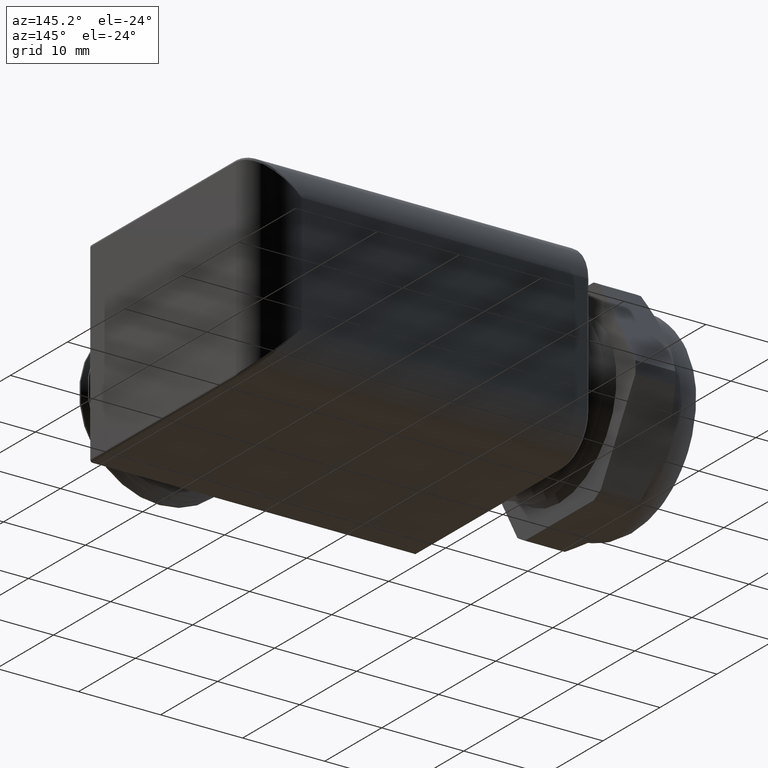
[diagram: clean part render]
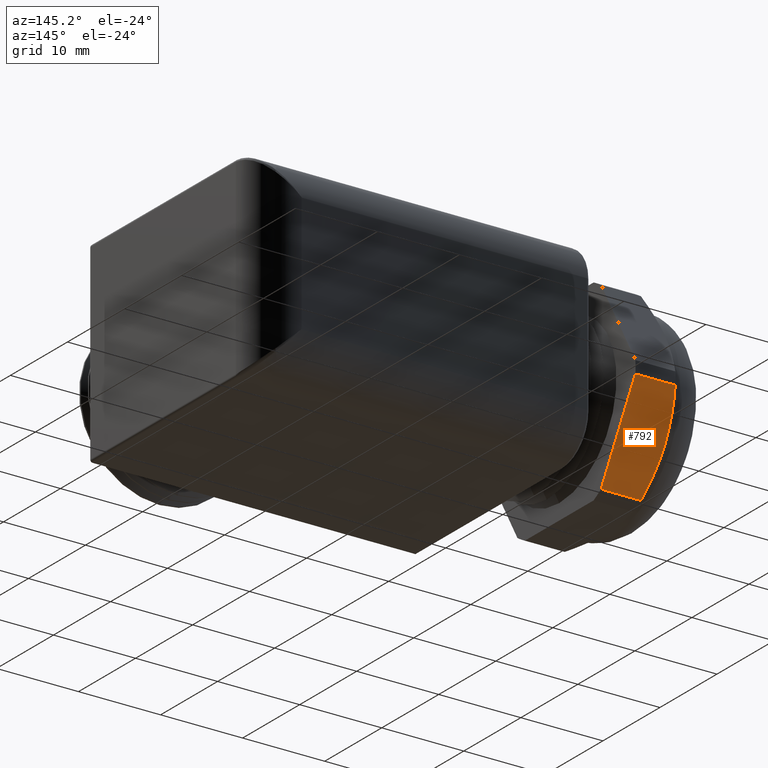
[diagram: same view with one face highlighted and labeled with its STEP entity id]
A machine part, auxiliary view. The second image highlights one B-rep face of the part: STEP entity #792.
In plain terms, the highlighted planar face has unit normal (0, -0.866, 0.5).
Its self-contained STEP definition (entity closure, byte-faithful):
#526 = VERTEX_POINT ( 'NONE', #2274 ) ;
#568 = VERTEX_POINT ( 'NONE', #2334 ) ;
#572 = EDGE_CURVE ( 'NONE', #573, #575, #2326, .T. ) ;
#573 = VERTEX_POINT ( 'NONE', #2191 ) ;
#575 = VERTEX_POINT ( 'NONE', #2185 ) ;
#751 = VERTEX_POINT ( 'NONE', #2668 ) ;
#753 = EDGE_CURVE ( 'NONE', #751, #568, #2653, .T. ) ;
#788 = ORIENTED_EDGE ( 'NONE', *, *, #960, .F. ) ;
#792 = ADVANCED_FACE ( 'NONE', ( #2773 ), #2772, .F. ) ;
#960 = EDGE_CURVE ( 'NONE', #526, #575, #3203, .T. ) ;
#965 = ORIENTED_EDGE ( 'NONE', *, *, #572, .T. ) ;
#975 = ORIENTED_EDGE ( 'NONE', *, *, #979, .F. ) ;
#979 = EDGE_CURVE ( 'NONE', #568, #526, #3139, .T. ) ;
#982 = EDGE_LOOP ( 'NONE', ( #975, #987, #990, #965, #788 ) ) ;
#985 = EDGE_CURVE ( 'NONE', #751, #573, #3122, .T. ) ;
#987 = ORIENTED_EDGE ( 'NONE', *, *, #753, .F. ) ;
#990 = ORIENTED_EDGE ( 'NONE', *, *, #985, .T. ) ;
#2185 = CARTESIAN_POINT ( 'NONE',  ( -0.4625953395545473500, 0.2885024497772521500, -0.4402990988777107400 ) ) ;
#2191 = CARTESIAN_POINT ( 'NONE',  ( -0.2711578947368420400, 0.2885024497772519200, -0.4402990988777108500 ) ) ;
#2274 = CARTESIAN_POINT ( 'NONE',  ( -0.4951578947368421300, 0.4070319397786859600, -0.2349999999999999900 ) ) ;
#2323 = DIRECTION ( 'NONE',  ( -1.000000000000000000, 0.0000000000000000000, 0.0000000000000000000 ) ) ;
#2324 = VECTOR ( 'NONE', #2323, 39.37007874015748100 ) ;
#2325 = CARTESIAN_POINT ( 'NONE',  ( 1.232614984114216400, 0.2885024497772521500, -0.4402990988777107400 ) ) ;
#2326 = LINE ( 'NONE', #2325, #2324 ) ;
#2334 = CARTESIAN_POINT ( 'NONE',  ( -0.4625953395545474600, 0.5255614297801199900, -0.02970090112228926400 ) ) ;
#2650 = DIRECTION ( 'NONE',  ( -1.000000000000000000, 0.0000000000000000000, 0.0000000000000000000 ) ) ;
#2651 = VECTOR ( 'NONE', #2650, 39.37007874015748100 ) ;
#2652 = CARTESIAN_POINT ( 'NONE',  ( 1.232614984114216400, 0.5255614297801199900, -0.02970090112228927100 ) ) ;
#2653 = LINE ( 'NONE', #2652, #2651 ) ;
#2668 = CARTESIAN_POINT ( 'NONE',  ( -0.2711578947368420400, 0.5255614297801199900, -0.02970090112228927800 ) ) ;
#2768 = DIRECTION ( 'NONE',  ( 0.0000000000000000000, -0.5000000000000002200, -0.8660254037844386000 ) ) ;
#2769 = DIRECTION ( 'NONE',  ( 0.0000000000000000000, -0.8660254037844386000, 0.5000000000000002200 ) ) ;
#2770 = CARTESIAN_POINT ( 'NONE',  ( 1.232614984114216400, 0.2885024497772520900, -0.4402990988777107400 ) ) ;
#2771 = AXIS2_PLACEMENT_3D ( 'NONE', #2770, #2769, #2768 ) ;
#2772 = PLANE ( 'NONE',  #2771 ) ;
#2773 = FACE_OUTER_BOUND ( 'NONE', #982, .T. ) ;
#3113 = DIRECTION ( 'NONE',  ( 0.0000000000000000000, -0.5000000000000001100, -0.8660254037844386000 ) ) ;
#3114 = VECTOR ( 'NONE', #3113, 39.37007874015748900 ) ;
#3121 = CARTESIAN_POINT ( 'NONE',  ( -0.2711578947368419900, 0.2885024497772520900, -0.4402990988777107400 ) ) ;
#3122 = LINE ( 'NONE', #3121, #3114 ) ;
#3133 = CARTESIAN_POINT ( 'NONE',  ( -0.4951578947368421300, 0.4070319397786859600, -0.2349999999999999900 ) ) ;
#3134 = CARTESIAN_POINT ( 'NONE',  ( -0.4951578947368423000, 0.4270861441162215900, -0.2002650991820202300 ) ) ;
#3135 = CARTESIAN_POINT ( 'NONE',  ( -0.4921546067548840900, 0.4469747253204129400, -0.1658170660459014900 ) ) ;
#3136 = CARTESIAN_POINT ( 'NONE',  ( -0.4809295128662803800, 0.4864641007116024500, -0.09741946150920115200 ) ) ;
#3137 = CARTESIAN_POINT ( 'NONE',  ( -0.4727329663616175500, 0.5060662878856626600, -0.06346747738425367900 ) ) ;
#3138 = CARTESIAN_POINT ( 'NONE',  ( -0.4625953395545474600, 0.5255614297801199900, -0.02970090112228926400 ) ) ;
#3139 = B_SPLINE_CURVE_WITH_KNOTS ( 'NONE', 3,
 ( #3138, #3137, #3136, #3135, #3134, #3133 ),
 .UNSPECIFIED., .F., .F.,
 ( 4, 2, 4 ),
 ( 2.361309699378385400E-007, 0.003038075244306927900, 0.006075914357643917900 ),
 .UNSPECIFIED. ) ;
#3194 = CARTESIAN_POINT ( 'NONE',  ( -0.4625953395545473500, 0.2885024497772521500, -0.4402990988777107400 ) ) ;
#3195 = CARTESIAN_POINT ( 'NONE',  ( -0.4726850758228875500, 0.3079054958720255400, -0.4066920372199622800 ) ) ;
#3196 = CARTESIAN_POINT ( 'NONE',  ( -0.4808808538796333600, 0.3274636671422467800, -0.3728162908768052900 ) ) ;
#3197 = CARTESIAN_POINT ( 'NONE',  ( -0.4893246889459829700, 0.3571162456125950300, -0.3214565183907389100 ) ) ;
#3198 = CARTESIAN_POINT ( 'NONE',  ( -0.4914973392523884800, 0.3670530184620780000, -0.3042455229521635100 ) ) ;
#3199 = CARTESIAN_POINT ( 'NONE',  ( -0.4944187900572144000, 0.3870431849766051700, -0.2696215388972405500 ) ) ;
#3200 = CARTESIAN_POINT ( 'NONE',  ( -0.4951578947368420200, 0.3970726507460992100, -0.2522499946117036700 ) ) ;
#3201 = CARTESIAN_POINT ( 'NONE',  ( -0.4951578947368421300, 0.4070319397786859600, -0.2349999999999999900 ) ) ;
#3203 = B_SPLINE_CURVE_WITH_KNOTS ( 'NONE', 3,
 ( #3201, #3200, #3199, #3198, #3197, #3196, #3195, #3194 ),
 .UNSPECIFIED., .F., .F.,
 ( 4, 2, 2, 4 ),
 ( 0.006075914357643917900, 0.007584561484949392400, 0.009093208612254866800, 0.01211050286686581600 ),
 .UNSPECIFIED. ) ;